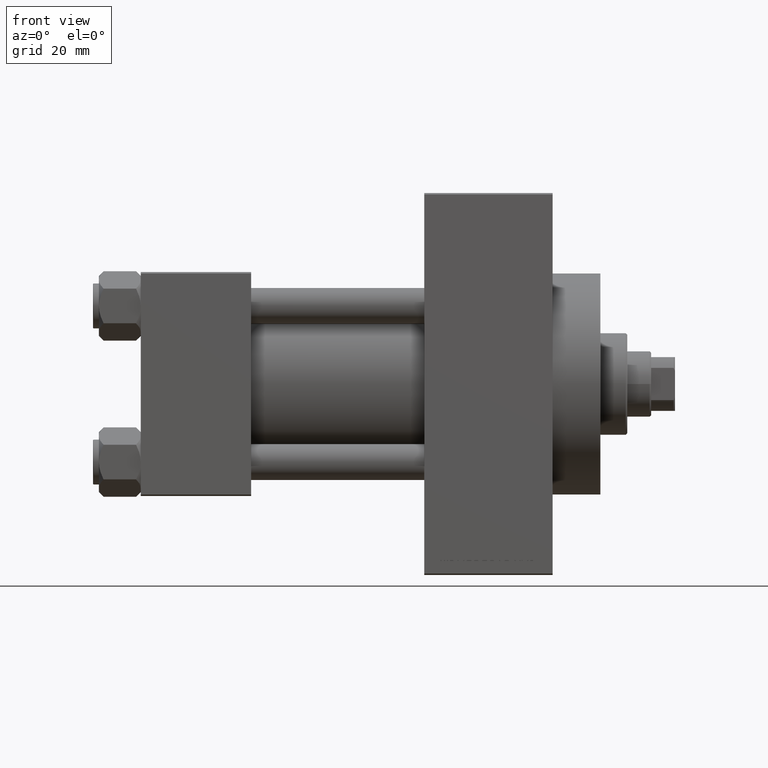
[diagram: clean part render]
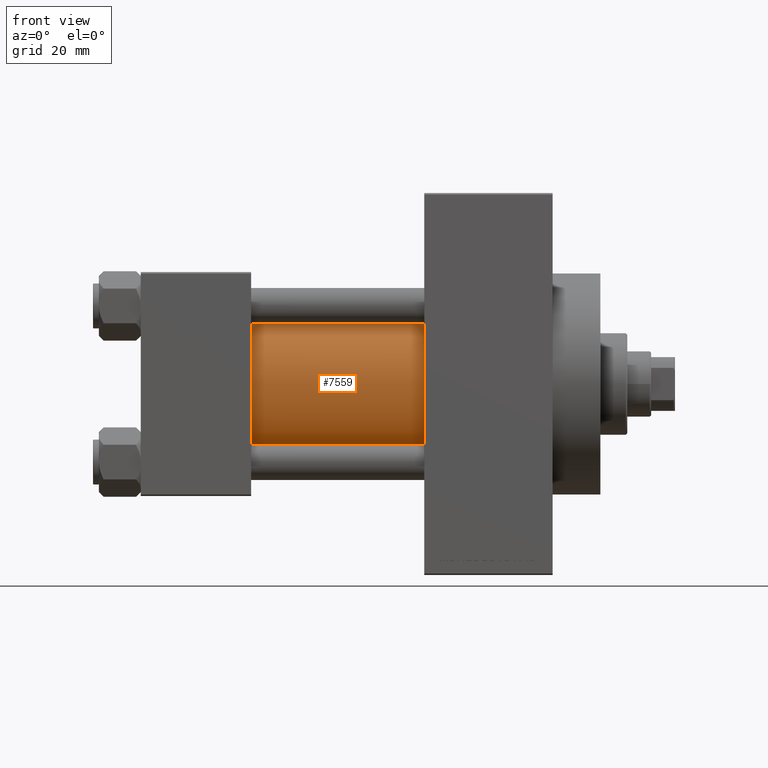
[diagram: same view with one face highlighted and labeled with its STEP entity id]
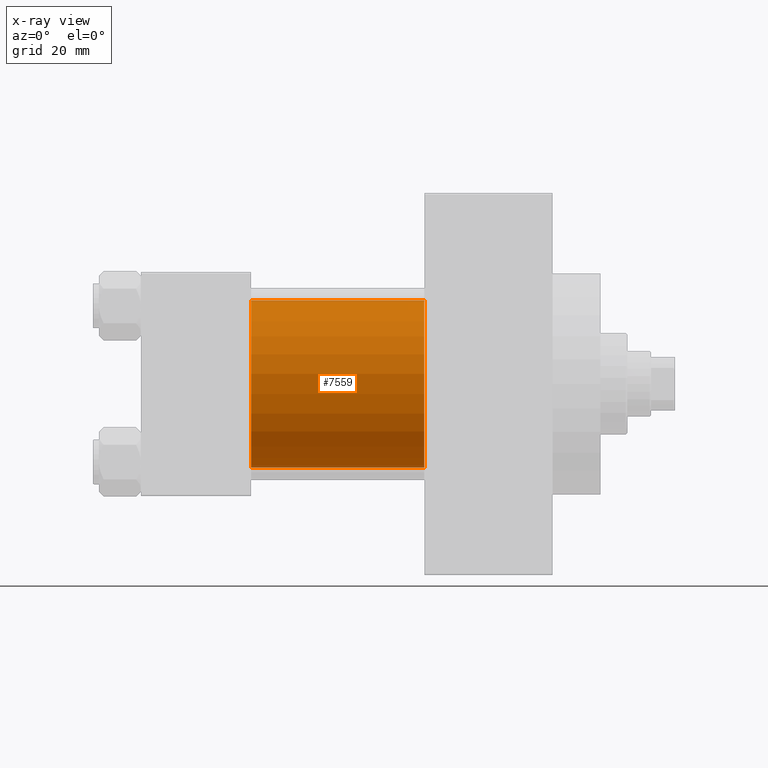
[diagram: x-ray of the same camera — body ghosted, the highlighted face saturated]
A machine part, front view. The second image highlights one B-rep face of the part: STEP entity #7559.
The next image is the same camera in x-ray: the body ghosted, the highlighted face saturated — about 2% of this face is hidden behind the body in this view.
In plain terms, the highlighted cylindrical surface (partial cylindrical patch) has radius 28 mm, axis along (-1, -0, -0).
Its self-contained STEP definition (entity closure, byte-faithful):
#468 = VECTOR ( 'NONE', #1026, 1000.000000000000000 ) ;
#1026 = DIRECTION ( 'NONE',  ( -1.000000000000000000, -0.000000000000000000, -0.000000000000000000 ) ) ;
#1333 = DIRECTION ( 'NONE',  ( -1.000000000000000000, -0.000000000000000000, -0.000000000000000000 ) ) ;
#2056 = CARTESIAN_POINT ( 'NONE',  ( 95.00000000000000000, -2.602085213965210642E-15, 0.000000000000000000 ) ) ;
#5536 = CIRCLE ( 'NONE', #7853, 28.00000000000000000 ) ;
#6268 = VECTOR ( 'NONE', #1333, 1000.000000000000000 ) ;
#7559 = ADVANCED_FACE ( 'NONE', ( #16400 ), #45278, .T. ) ;
#7853 = AXIS2_PLACEMENT_3D ( 'NONE', #20936, #21174, #42446 ) ;
#11327 = EDGE_CURVE ( 'NONE', #44877, #43049, #19470, .T. ) ;
#11512 = AXIS2_PLACEMENT_3D ( 'NONE', #2056, #38806, #34061 ) ;
#12387 = EDGE_CURVE ( 'NONE', #20714, #44877, #5536, .T. ) ;
#13232 = CARTESIAN_POINT ( 'NONE',  ( 95.00000000000000000, -2.602085213965210642E-15, 28.00000000000000000 ) ) ;
#14288 = ORIENTED_EDGE ( 'NONE', *, *, #35778, .T. ) ;
#14876 = CARTESIAN_POINT ( 'NONE',  ( 95.00000000000000000, -2.602085213965210642E-15, 28.00000000000000000 ) ) ;
#16400 = FACE_OUTER_BOUND ( 'NONE', #34186, .T. ) ;
#17689 = CARTESIAN_POINT ( 'NONE',  ( 37.00000000000000000, 8.269258236473776482E-16, -28.00000000000000000 ) ) ;
#19470 = LINE ( 'NONE', #34026, #6268 ) ;
#20714 = VERTEX_POINT ( 'NONE', #13232 ) ;
#20936 = CARTESIAN_POINT ( 'NONE',  ( 95.00000000000000000, -2.602085213965210642E-15, 0.000000000000000000 ) ) ;
#21174 = DIRECTION ( 'NONE',  ( 1.000000000000000000, 0.000000000000000000, 0.000000000000000000 ) ) ;
#22271 = ORIENTED_EDGE ( 'NONE', *, *, #37551, .T. ) ;
#23292 = DIRECTION ( 'NONE',  ( 1.000000000000000000, -0.000000000000000000, 0.000000000000000000 ) ) ;
#24168 = CIRCLE ( 'NONE', #33299, 28.00000000000000000 ) ;
#26122 = ORIENTED_EDGE ( 'NONE', *, *, #11327, .F. ) ;
#32504 = VERTEX_POINT ( 'NONE', #46347 ) ;
#33299 = AXIS2_PLACEMENT_3D ( 'NONE', #36667, #23292, #34266 ) ;
#33947 = LINE ( 'NONE', #14876, #468 ) ;
#34026 = CARTESIAN_POINT ( 'NONE',  ( 95.00000000000000000, 8.269258236473776482E-16, -28.00000000000000000 ) ) ;
#34061 = DIRECTION ( 'NONE',  ( 0.000000000000000000, 0.000000000000000000, 1.000000000000000000 ) ) ;
#34186 = EDGE_LOOP ( 'NONE', ( #26122, #36646, #14288, #22271 ) ) ;
#34266 = DIRECTION ( 'NONE',  ( 0.000000000000000000, 0.000000000000000000, 1.000000000000000000 ) ) ;
#35778 = EDGE_CURVE ( 'NONE', #20714, #32504, #33947, .T. ) ;
#36646 = ORIENTED_EDGE ( 'NONE', *, *, #12387, .F. ) ;
#36667 = CARTESIAN_POINT ( 'NONE',  ( 37.00000000000000000, -2.602085213965210642E-15, 0.000000000000000000 ) ) ;
#37551 = EDGE_CURVE ( 'NONE', #32504, #43049, #24168, .T. ) ;
#38806 = DIRECTION ( 'NONE',  ( -1.000000000000000000, -0.000000000000000000, -0.000000000000000000 ) ) ;
#42446 = DIRECTION ( 'NONE',  ( 0.000000000000000000, 0.000000000000000000, -1.000000000000000000 ) ) ;
#43049 = VERTEX_POINT ( 'NONE', #17689 ) ;
#44877 = VERTEX_POINT ( 'NONE', #45285 ) ;
#45278 = CYLINDRICAL_SURFACE ( 'NONE', #11512, 28.00000000000000000 ) ;
#45285 = CARTESIAN_POINT ( 'NONE',  ( 95.00000000000000000, 8.269258236473776482E-16, -28.00000000000000000 ) ) ;
#46347 = CARTESIAN_POINT ( 'NONE',  ( 37.00000000000000000, -2.602085213965210642E-15, 28.00000000000000000 ) ) ;